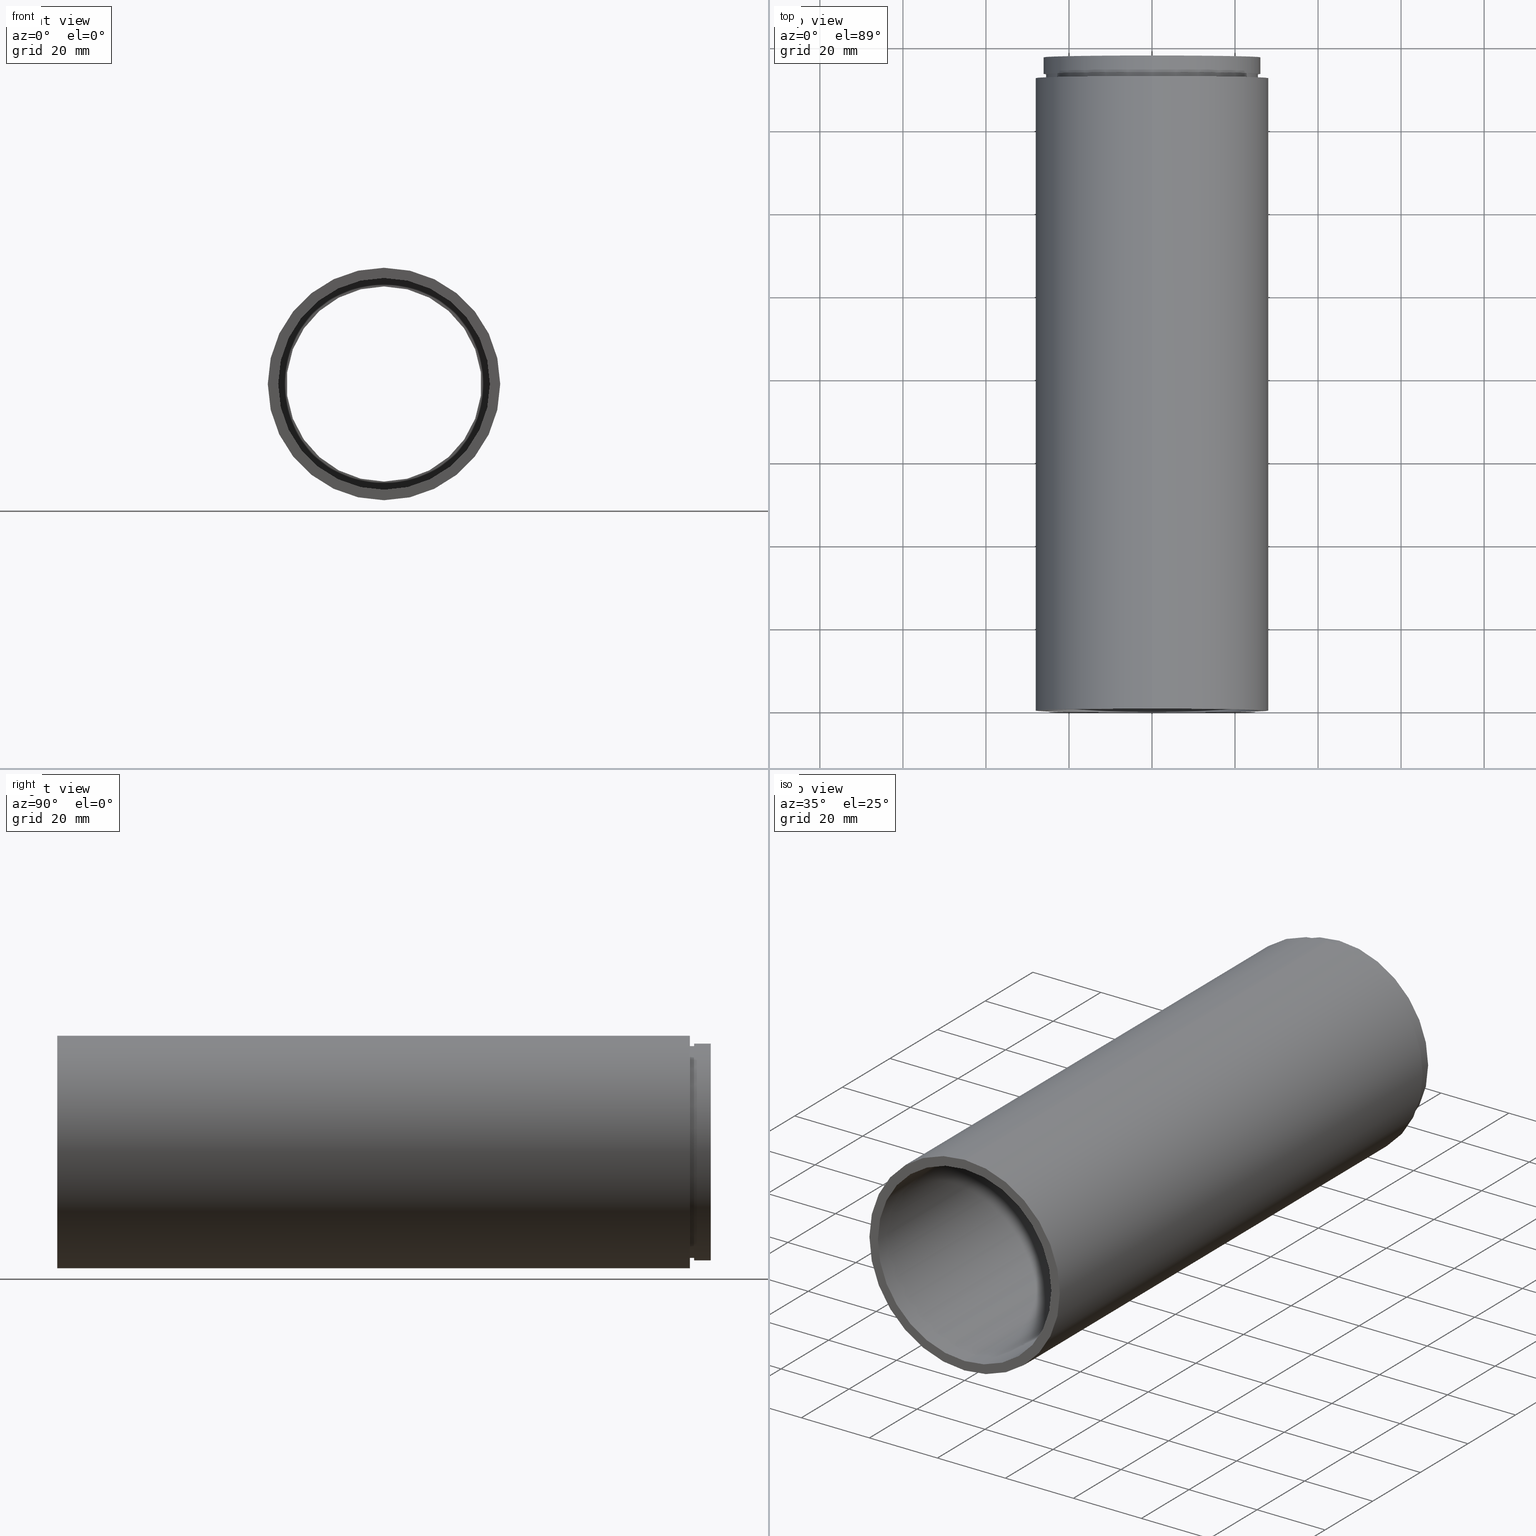
[diagram: canonical four-view strip — front | top / right | iso, engineering-drawing reading convention]
A machine part, canonical four-view strip (front | top / right | iso — engineering-drawing reading convention). The complete STEP part file that produces these views, byte-faithful:
ISO-10303-21;
HEADER;
FILE_DESCRIPTION (( 'STEP AP214' ),
    '1' );
FILE_NAME ('503099.STEP',
    '2019-09-12T01:43:04',
    ( '' ),
    ( '' ),
    'SwSTEP 2.0',
    'SolidWorks 2016',
    '' );
FILE_SCHEMA (( 'AUTOMOTIVE_DESIGN' ));
ENDSEC;

DATA;
#1 = EDGE_LOOP ( 'NONE', ( #52, #569, #319, #153 ) ) ;
#2 = DIRECTION ( 'NONE',  ( 0.0000000000000000000, 0.0000000000000000000, 1.000000000000000000 ) ) ;
#3 = DIRECTION ( 'NONE',  ( 0.0000000000000000000, 0.0000000000000000000, 1.000000000000000000 ) ) ;
#4 = CYLINDRICAL_SURFACE ( 'NONE', #422, 26.10000000000000100 ) ;
#5 =( GEOMETRIC_REPRESENTATION_CONTEXT ( 3 ) GLOBAL_UNCERTAINTY_ASSIGNED_CONTEXT ( ( #77 ) ) GLOBAL_UNIT_ASSIGNED_CONTEXT ( ( #597, #171, #22 ) ) REPRESENTATION_CONTEXT ( 'NONE', 'WORKASPACE' ) );
#6 = PRESENTATION_STYLE_ASSIGNMENT (( #623 ) ) ;
#7 = EDGE_CURVE ( 'NONE', #10, #278, #202, .T. ) ;
#8 = ORIENTED_EDGE ( 'NONE', *, *, #302, .F. ) ;
#9 = CIRCLE ( 'NONE', #236, 28.00000000000002100 ) ;
#10 = VERTEX_POINT ( 'NONE', #66 ) ;
#11 = VERTEX_POINT ( 'NONE', #267 ) ;
#12 = UNCERTAINTY_MEASURE_WITH_UNIT (LENGTH_MEASURE( 1.000000000000000100E-005 ), #544, 'distance_accuracy_value', 'NONE');
#13 = CARTESIAN_POINT ( 'NONE',  ( 0.0000000000000000000, -2.775557561562891400E-014, 25.50000000000001800 ) ) ;
#14 = CIRCLE ( 'NONE', #36, 25.50000000000000000 ) ;
#15 = DIRECTION ( 'NONE',  ( -0.0000000000000000000, 1.000000000000000000, -0.0000000000000000000 ) ) ;
#16 = ORIENTED_EDGE ( 'NONE', *, *, #507, .T. ) ;
#17 = DIRECTION ( 'NONE',  ( 0.0000000000000000000, 0.0000000000000000000, 1.000000000000000000 ) ) ;
#18 = SURFACE_SIDE_STYLE ('',( #92 ) ) ;
#19 = DIRECTION ( 'NONE',  ( 0.0000000000000000000, 0.0000000000000000000, 1.000000000000000000 ) ) ;
#20 = DIRECTION ( 'NONE',  ( -0.0000000000000000000, 1.000000000000000000, -0.0000000000000000000 ) ) ;
#21 = STYLED_ITEM ( 'NONE', ( #244 ), #201 ) ;
#22 =( NAMED_UNIT ( * ) SI_UNIT ( $, .STERADIAN. ) SOLID_ANGLE_UNIT ( ) );
#23 = SURFACE_STYLE_FILL_AREA ( #485 ) ;
#24 = VECTOR ( 'NONE', #309, 1000.000000000000000 ) ;
#25 = DIRECTION ( 'NONE',  ( -0.0000000000000000000, 1.000000000000000000, -0.0000000000000000000 ) ) ;
#26 = VERTEX_POINT ( 'NONE', #308 ) ;
#27 = STYLED_ITEM ( 'NONE', ( #251 ), #474 ) ;
#28 = ORIENTED_EDGE ( 'NONE', *, *, #275, .F. ) ;
#29 = CARTESIAN_POINT ( 'NONE',  ( 0.0000000000000000000, 150.3999999999999800, 25.50000000000001800 ) ) ;
#30 = CARTESIAN_POINT ( 'NONE',  ( 0.0000000000000000000, 152.3999999999999800, 28.00000000000002100 ) ) ;
#31 = DIRECTION ( 'NONE',  ( 0.0000000000000000000, 0.0000000000000000000, 1.000000000000000000 ) ) ;
#32 = CARTESIAN_POINT ( 'NONE',  ( 0.0000000000000000000, 161.3761669434274500, 26.10000000000000100 ) ) ;
#33 =( LENGTH_UNIT ( ) NAMED_UNIT ( * ) SI_UNIT ( .MILLI., .METRE. ) );
#34 = ORIENTED_EDGE ( 'NONE', *, *, #37, .T. ) ;
#35 = CARTESIAN_POINT ( 'NONE',  ( 0.0000000000000000000, 161.3761669434274500, 25.50000000000001800 ) ) ;
#36 = AXIS2_PLACEMENT_3D ( 'NONE', #232, #609, #31 ) ;
#37 = EDGE_CURVE ( 'NONE', #11, #26, #235, .T. ) ;
#38 =( NAMED_UNIT ( * ) SI_UNIT ( $, .STERADIAN. ) SOLID_ANGLE_UNIT ( ) );
#39 = CARTESIAN_POINT ( 'NONE',  ( 3.429011037612591600E-015, 152.3999999999999800, -28.00000000000002100 ) ) ;
#40 = CARTESIAN_POINT ( 'NONE',  ( 0.0000000000000000000, 150.3999999999999800, 26.10000000000000100 ) ) ;
#41 = FACE_OUTER_BOUND ( 'NONE', #614, .T. ) ;
#42 = PLANE ( 'NONE',  #563 ) ;
#43 = LINE ( 'NONE', #114, #257 ) ;
#44 = VERTEX_POINT ( 'NONE', #169 ) ;
#45 = DIRECTION ( 'NONE',  ( -0.0000000000000000000, 1.000000000000000000, -0.0000000000000000000 ) ) ;
#46 = EDGE_CURVE ( 'NONE', #157, #300, #389, .T. ) ;
#47 = DIRECTION ( 'NONE',  ( 0.0000000000000000000, 0.0000000000000000000, 1.000000000000000000 ) ) ;
#48 = ADVANCED_FACE ( 'NONE', ( #133 ), #576, .F. ) ;
#49 = DIRECTION ( 'NONE',  ( 0.0000000000000000000, -1.000000000000000000, 0.0000000000000000000 ) ) ;
#50 = AXIS2_PLACEMENT_3D ( 'NONE', #383, #90, #530 ) ;
#51 = EDGE_LOOP ( 'NONE', ( #368, #419 ) ) ;
#52 = ORIENTED_EDGE ( 'NONE', *, *, #395, .F. ) ;
#53 = COLOUR_RGB ( '',1.000000000000000000, 1.000000000000000000, 1.000000000000000000 ) ;
#54 = AXIS2_PLACEMENT_3D ( 'NONE', #172, #118, #17 ) ;
#55 = ORIENTED_EDGE ( 'NONE', *, *, #302, .T. ) ;
#56 = AXIS2_PLACEMENT_3D ( 'NONE', #403, #164, #301 ) ;
#57 =( NAMED_UNIT ( * ) SI_UNIT ( $, .STERADIAN. ) SOLID_ANGLE_UNIT ( ) );
#58 = FACE_OUTER_BOUND ( 'NONE', #272, .T. ) ;
#59 = ORIENTED_EDGE ( 'NONE', *, *, #63, .T. ) ;
#60 = SURFACE_STYLE_USAGE ( .BOTH. , #262 ) ;
#61 = DIRECTION ( 'NONE',  ( -0.0000000000000000000, 1.000000000000000000, -0.0000000000000000000 ) ) ;
#62 = DIRECTION ( 'NONE',  ( -0.0000000000000000000, 1.000000000000000000, -0.0000000000000000000 ) ) ;
#63 = EDGE_CURVE ( 'NONE', #334, #81, #527, .T. ) ;
#64 = DIRECTION ( 'NONE',  ( 0.0000000000000000000, 0.0000000000000000000, 1.000000000000000000 ) ) ;
#65 = VECTOR ( 'NONE', #312, 1000.000000000000000 ) ;
#66 = CARTESIAN_POINT ( 'NONE',  ( 0.0000000000000000000, -2.775557561562891400E-014, 28.00000000000002100 ) ) ;
#67 = DIRECTION ( 'NONE',  ( 0.0000000000000000000, 0.0000000000000000000, 1.000000000000000000 ) ) ;
#68 = VECTOR ( 'NONE', #412, 1000.000000000000000 ) ;
#69 = EDGE_LOOP ( 'NONE', ( #16, #194 ) ) ;
#70 = CARTESIAN_POINT ( 'NONE',  ( 0.0000000000000000000, -2.775557561562891400E-014, 0.0000000000000000000 ) ) ;
#71 = CARTESIAN_POINT ( 'NONE',  ( 0.0000000000000000000, 161.3761669434274500, 0.0000000000000000000 ) ) ;
#72 = DIRECTION ( 'NONE',  ( -0.0000000000000000000, 1.000000000000000000, -0.0000000000000000000 ) ) ;
#73 = SURFACE_SIDE_STYLE ('',( #270 ) ) ;
#74 = AXIS2_PLACEMENT_3D ( 'NONE', #141, #45, #579 ) ;
#75 = SHAPE_DEFINITION_REPRESENTATION ( #545, #372 ) ;
#76 = ORIENTED_EDGE ( 'NONE', *, *, #240, .F. ) ;
#77 = UNCERTAINTY_MEASURE_WITH_UNIT (LENGTH_MEASURE( 1.000000000000000100E-005 ), #597, 'distance_accuracy_value', 'NONE');
#78 = ORIENTED_EDGE ( 'NONE', *, *, #590, .F. ) ;
#79 = DIRECTION ( 'NONE',  ( -0.0000000000000000000, 1.000000000000000000, -0.0000000000000000000 ) ) ;
#80 = AXIS2_PLACEMENT_3D ( 'NONE', #558, #280, #185 ) ;
#81 = VERTEX_POINT ( 'NONE', #274 ) ;
#82 =( LENGTH_UNIT ( ) NAMED_UNIT ( * ) SI_UNIT ( .MILLI., .METRE. ) );
#83 = CARTESIAN_POINT ( 'NONE',  ( 0.0000000000000000000, 150.3999999999999800, 0.0000000000000000000 ) ) ;
#84 = FACE_OUTER_BOUND ( 'NONE', #69, .T. ) ;
#85 = PRODUCT_CONTEXT ( 'NONE', #425, 'mechanical' ) ;
#86 = FACE_OUTER_BOUND ( 'NONE', #470, .T. ) ;
#87 = VERTEX_POINT ( 'NONE', #502 ) ;
#88 = EDGE_CURVE ( 'NONE', #265, #81, #604, .T. ) ;
#89 = ADVANCED_FACE ( 'NONE', ( #407 ), #121, .T. ) ;
#90 = DIRECTION ( 'NONE',  ( -0.0000000000000000000, 1.000000000000000000, 0.0000000000000000000 ) ) ;
#91 = AXIS2_PLACEMENT_3D ( 'NONE', #227, #552, #19 ) ;
#92 = SURFACE_STYLE_FILL_AREA ( #223 ) ;
#93 = FILL_AREA_STYLE ('',( #532 ) ) ;
#94 = VERTEX_POINT ( 'NONE', #29 ) ;
#95 = ORIENTED_EDGE ( 'NONE', *, *, #165, .T. ) ;
#96 = PRODUCT ( '503099', '503099', '', ( #85 ) ) ;
#97 = ORIENTED_EDGE ( 'NONE', *, *, #116, .T. ) ;
#98 = ADVANCED_FACE ( 'NONE', ( #347, #567 ), #453, .F. ) ;
#99 = CARTESIAN_POINT ( 'NONE',  ( 23.50000000000000000, 157.3999999999999800, 0.0000000000000000000 ) ) ;
#100 =( GEOMETRIC_REPRESENTATION_CONTEXT ( 3 ) GLOBAL_UNCERTAINTY_ASSIGNED_CONTEXT ( ( #531 ) ) GLOBAL_UNIT_ASSIGNED_CONTEXT ( ( #138, #414, #469 ) ) REPRESENTATION_CONTEXT ( 'NONE', 'WORKASPACE' ) );
#101 = CYLINDRICAL_SURFACE ( 'NONE', #158, 25.50000000000000000 ) ;
#102 = EDGE_CURVE ( 'NONE', #10, #228, #43, .T. ) ;
#103 = FACE_OUTER_BOUND ( 'NONE', #246, .T. ) ;
#104 = ADVANCED_FACE ( 'NONE', ( #487 ), #538, .F. ) ;
#105 = PLANE ( 'NONE',  #553 ) ;
#106 = PRESENTATION_STYLE_ASSIGNMENT (( #596 ) ) ;
#107 = ORIENTED_EDGE ( 'NONE', *, *, #63, .F. ) ;
#108 = AXIS2_PLACEMENT_3D ( 'NONE', #148, #248, #2 ) ;
#109 = VERTEX_POINT ( 'NONE', #40 ) ;
#110 =( NAMED_UNIT ( * ) PLANE_ANGLE_UNIT ( ) SI_UNIT ( $, .RADIAN. ) );
#111 = COLOUR_RGB ( '',1.000000000000000000, 1.000000000000000000, 1.000000000000000000 ) ;
#112 = VECTOR ( 'NONE', #399, 1000.000000000000000 ) ;
#113 = ORIENTED_EDGE ( 'NONE', *, *, #146, .F. ) ;
#114 = CARTESIAN_POINT ( 'NONE',  ( 0.0000000000000000000, 161.3761669434274500, 28.00000000000002100 ) ) ;
#115 = CARTESIAN_POINT ( 'NONE',  ( 0.0000000000000000000, 161.3761669434274500, 26.10000000000000100 ) ) ;
#116 = EDGE_CURVE ( 'NONE', #170, #488, #506, .T. ) ;
#117 = DIRECTION ( 'NONE',  ( 0.0000000000000000000, 0.0000000000000000000, 1.000000000000000000 ) ) ;
#118 = DIRECTION ( 'NONE',  ( -0.0000000000000000000, 1.000000000000000000, -0.0000000000000000000 ) ) ;
#119 = DIRECTION ( 'NONE',  ( 0.0000000000000000000, -0.0000000000000000000, -1.000000000000000000 ) ) ;
#120 = MECHANICAL_DESIGN_GEOMETRIC_PRESENTATION_REPRESENTATION (  '', ( #27 ), #489 ) ;
#121 = CYLINDRICAL_SURFACE ( 'NONE', #429, 28.00000000000002100 ) ;
#122 = ORIENTED_EDGE ( 'NONE', *, *, #140, .F. ) ;
#123 =( NAMED_UNIT ( * ) PLANE_ANGLE_UNIT ( ) SI_UNIT ( $, .RADIAN. ) );
#124 = UNCERTAINTY_MEASURE_WITH_UNIT (LENGTH_MEASURE( 1.000000000000000100E-005 ), #82, 'distance_accuracy_value', 'NONE');
#125 = ORIENTED_EDGE ( 'NONE', *, *, #410, .T. ) ;
#126 = CARTESIAN_POINT ( 'NONE',  ( 0.0000000000000000000, -2.775557561562891400E-014, 0.0000000000000000000 ) ) ;
#127 = CARTESIAN_POINT ( 'NONE',  ( 0.0000000000000000000, 151.3999999999999800, 0.0000000000000000000 ) ) ;
#128 = APPLICATION_PROTOCOL_DEFINITION ( 'draft international standard', 'automotive_design', 1998, #425 ) ;
#129 = CARTESIAN_POINT ( 'NONE',  ( 3.122849337825753000E-015, -2.775557561562891400E-014, -25.50000000000001800 ) ) ;
#130 = CARTESIAN_POINT ( 'NONE',  ( 0.0000000000000000000, 153.3999999999999800, 25.50000000000000000 ) ) ;
#131 = CYLINDRICAL_SURFACE ( 'NONE', #423, 23.50000000000000000 ) ;
#132 = DIRECTION ( 'NONE',  ( 0.0000000000000000000, 0.0000000000000000000, 1.000000000000000000 ) ) ;
#133 = FACE_OUTER_BOUND ( 'NONE', #557, .T. ) ;
#134 = PRODUCT_RELATED_PRODUCT_CATEGORY ( 'part', '', ( #96 ) ) ;
#135 = ORIENTED_EDGE ( 'NONE', *, *, #173, .T. ) ;
#136 = AXIS2_PLACEMENT_3D ( 'NONE', #504, #457, #445 ) ;
#137 = DIRECTION ( 'NONE',  ( -0.0000000000000000000, 1.000000000000000000, -0.0000000000000000000 ) ) ;
#138 =( LENGTH_UNIT ( ) NAMED_UNIT ( * ) SI_UNIT ( .MILLI., .METRE. ) );
#139 = DIRECTION ( 'NONE',  ( 0.0000000000000000000, 0.0000000000000000000, 1.000000000000000000 ) ) ;
#140 = EDGE_CURVE ( 'NONE', #109, #170, #225, .T. ) ;
#141 = CARTESIAN_POINT ( 'NONE',  ( 0.0000000000000000000, 161.3761669434274500, 0.0000000000000000000 ) ) ;
#142 = PRESENTATION_STYLE_ASSIGNMENT (( #365 ) ) ;
#143 = FILL_AREA_STYLE_COLOUR ( '', #486 ) ;
#144 = ORIENTED_EDGE ( 'NONE', *, *, #275, .T. ) ;
#145 = ORIENTED_EDGE ( 'NONE', *, *, #155, .T. ) ;
#146 = EDGE_CURVE ( 'NONE', #157, #180, #264, .T. ) ;
#147 =( NAMED_UNIT ( * ) SI_UNIT ( $, .STERADIAN. ) SOLID_ANGLE_UNIT ( ) );
#148 = CARTESIAN_POINT ( 'NONE',  ( 0.0000000000000000000, 151.3999999999999800, 0.0000000000000000000 ) ) ;
#149 = AXIS2_PLACEMENT_3D ( 'NONE', #518, #379, #462 ) ;
#150 = CIRCLE ( 'NONE', #149, 26.10000000000000100 ) ;
#151 = FACE_OUTER_BOUND ( 'NONE', #162, .T. ) ;
#152 = FACE_BOUND ( 'NONE', #577, .T. ) ;
#153 = ORIENTED_EDGE ( 'NONE', *, *, #37, .F. ) ;
#154 = ORIENTED_EDGE ( 'NONE', *, *, #439, .F. ) ;
#155 = EDGE_CURVE ( 'NONE', #94, #180, #493, .T. ) ;
#156 = VECTOR ( 'NONE', #465, 1000.000000000000000 ) ;
#157 = VERTEX_POINT ( 'NONE', #129 ) ;
#158 = AXIS2_PLACEMENT_3D ( 'NONE', #523, #322, #328 ) ;
#159 = CARTESIAN_POINT ( 'NONE',  ( 0.0000000000000000000, 157.3999999999999800, 0.0000000000000000000 ) ) ;
#160 = LINE ( 'NONE', #615, #156 ) ;
#161 = CARTESIAN_POINT ( 'NONE',  ( 3.122849337825750200E-015, 152.3999999999999800, -25.50000000000000000 ) ) ;
#162 = EDGE_LOOP ( 'NONE', ( #495, #349, #494, #217 ) ) ;
#163 = ORIENTED_EDGE ( 'NONE', *, *, #287, .F. ) ;
#164 = DIRECTION ( 'NONE',  ( -0.0000000000000000000, 1.000000000000000000, -0.0000000000000000000 ) ) ;
#165 = EDGE_CURVE ( 'NONE', #265, #206, #593, .T. ) ;
#166 = CARTESIAN_POINT ( 'NONE',  ( 0.0000000000000000000, 161.3761669434274500, 0.0000000000000000000 ) ) ;
#167 = DIRECTION ( 'NONE',  ( -0.0000000000000000000, 1.000000000000000000, -0.0000000000000000000 ) ) ;
#168 = FACE_OUTER_BOUND ( 'NONE', #509, .T. ) ;
#169 = CARTESIAN_POINT ( 'NONE',  ( 2.877919977996280300E-015, 151.3999999999999800, -23.50000000000000000 ) ) ;
#170 = VERTEX_POINT ( 'NONE', #463 ) ;
#171 =( NAMED_UNIT ( * ) PLANE_ANGLE_UNIT ( ) SI_UNIT ( $, .RADIAN. ) );
#172 = CARTESIAN_POINT ( 'NONE',  ( 0.0000000000000000000, 157.3999999999999800, 0.0000000000000000000 ) ) ;
#173 = EDGE_CURVE ( 'NONE', #26, #226, #340, .T. ) ;
#174 = FILL_AREA_STYLE ('',( #321 ) ) ;
#175 = CIRCLE ( 'NONE', #91, 25.50000000000000000 ) ;
#176 = FILL_AREA_STYLE_COLOUR ( '', #415 ) ;
#177 = FACE_BOUND ( 'NONE', #605, .T. ) ;
#178 = ORIENTED_EDGE ( 'NONE', *, *, #102, .T. ) ;
#179 = DIRECTION ( 'NONE',  ( 0.0000000000000000000, 0.0000000000000000000, 1.000000000000000000 ) ) ;
#180 = VERTEX_POINT ( 'NONE', #239 ) ;
#181 = CARTESIAN_POINT ( 'NONE',  ( 0.0000000000000000000, 152.3999999999999800, 25.50000000000000000 ) ) ;
#182 = FILL_AREA_STYLE ('',( #176 ) ) ;
#183 =( NAMED_UNIT ( * ) PLANE_ANGLE_UNIT ( ) SI_UNIT ( $, .RADIAN. ) );
#184 = DIRECTION ( 'NONE',  ( -0.0000000000000000000, 1.000000000000000000, -0.0000000000000000000 ) ) ;
#185 = DIRECTION ( 'NONE',  ( 1.000000000000000000, 0.0000000000000000000, 0.0000000000000000000 ) ) ;
#186 = ORIENTED_EDGE ( 'NONE', *, *, #155, .F. ) ;
#187 = MECHANICAL_DESIGN_GEOMETRIC_PRESENTATION_REPRESENTATION (  '', ( #572 ), #601 ) ;
#188 = CARTESIAN_POINT ( 'NONE',  ( 28.00000000000002100, 152.3999999999999800, 0.0000000000000000000 ) ) ;
#189 = AXIS2_PLACEMENT_3D ( 'NONE', #99, #329, #396 ) ;
#190 = UNCERTAINTY_MEASURE_WITH_UNIT (LENGTH_MEASURE( 1.000000000000000100E-005 ), #243, 'distance_accuracy_value', 'NONE');
#191 = CYLINDRICAL_SURFACE ( 'NONE', #297, 26.10000000000000100 ) ;
#192 = CYLINDRICAL_SURFACE ( 'NONE', #490, 28.00000000000002100 ) ;
#193 =( NAMED_UNIT ( * ) SI_UNIT ( $, .STERADIAN. ) SOLID_ANGLE_UNIT ( ) );
#194 = ORIENTED_EDGE ( 'NONE', *, *, #475, .T. ) ;
#195 = VERTEX_POINT ( 'NONE', #181 ) ;
#196 = CARTESIAN_POINT ( 'NONE',  ( 0.0000000000000000000, 152.3999999999999800, 0.0000000000000000000 ) ) ;
#197 = PRESENTATION_LAYER_ASSIGNMENT (  '', '', ( #400 ) ) ;
#198 = AXIS2_PLACEMENT_3D ( 'NONE', #283, #277, #369 ) ;
#199 = CIRCLE ( 'NONE', #540, 25.50000000000000000 ) ;
#200 = CIRCLE ( 'NONE', #521, 28.00000000000002100 ) ;
#201 = ADVANCED_FACE ( 'NONE', ( #216 ), #131, .F. ) ;
#202 = CIRCLE ( 'NONE', #370, 28.00000000000002100 ) ;
#203 = ORIENTED_EDGE ( 'NONE', *, *, #382, .F. ) ;
#204 = EDGE_CURVE ( 'NONE', #300, #94, #436, .T. ) ;
#205 = DIRECTION ( 'NONE',  ( -0.0000000000000000000, 1.000000000000000000, 0.0000000000000000000 ) ) ;
#206 = VERTEX_POINT ( 'NONE', #281 ) ;
#207 = ORIENTED_EDGE ( 'NONE', *, *, #499, .T. ) ;
#208 = EDGE_LOOP ( 'NONE', ( #310, #432 ) ) ;
#209 = DIRECTION ( 'NONE',  ( -0.0000000000000000000, 1.000000000000000000, -0.0000000000000000000 ) ) ;
#210 = PRODUCT_DEFINITION ( 'δ֪', '', #250, #467 ) ;
#211 = CARTESIAN_POINT ( 'NONE',  ( 25.50000000000001800, -1.408179048343280000E-014, 0.0000000000000000000 ) ) ;
#212 = CARTESIAN_POINT ( 'NONE',  ( 3.196328145774592300E-015, 161.3761669434274500, -26.10000000000000100 ) ) ;
#213 = CIRCLE ( 'NONE', #520, 23.50000000000000000 ) ;
#214 = FACE_BOUND ( 'NONE', #208, .T. ) ;
#215 = FILL_AREA_STYLE ('',( #359 ) ) ;
#216 = FACE_OUTER_BOUND ( 'NONE', #320, .T. ) ;
#217 = ORIENTED_EDGE ( 'NONE', *, *, #358, .F. ) ;
#218 = FILL_AREA_STYLE ('',( #594 ) ) ;
#219 = DIRECTION ( 'NONE',  ( 0.0000000000000000000, 0.0000000000000000000, 1.000000000000000000 ) ) ;
#220 = EDGE_CURVE ( 'NONE', #550, #228, #9, .T. ) ;
#221 = CARTESIAN_POINT ( 'NONE',  ( 0.0000000000000000000, 151.3999999999999800, 0.0000000000000000000 ) ) ;
#222 = DIRECTION ( 'NONE',  ( -0.0000000000000000000, 1.000000000000000000, -0.0000000000000000000 ) ) ;
#223 = FILL_AREA_STYLE ('',( #599 ) ) ;
#224 = MECHANICAL_DESIGN_GEOMETRIC_PRESENTATION_REPRESENTATION (  '', ( #400 ), #562 ) ;
#225 = LINE ( 'NONE', #32, #376 ) ;
#226 = VERTEX_POINT ( 'NONE', #316 ) ;
#227 = CARTESIAN_POINT ( 'NONE',  ( 0.0000000000000000000, 152.3999999999999800, 0.0000000000000000000 ) ) ;
#228 = VERTEX_POINT ( 'NONE', #30 ) ;
#229 =( NAMED_UNIT ( * ) PLANE_ANGLE_UNIT ( ) SI_UNIT ( $, .RADIAN. ) );
#230 = DIRECTION ( 'NONE',  ( 0.0000000000000000000, 0.0000000000000000000, 1.000000000000000000 ) ) ;
#231 = CARTESIAN_POINT ( 'NONE',  ( 0.0000000000000000000, 161.3761669434274500, 0.0000000000000000000 ) ) ;
#232 = CARTESIAN_POINT ( 'NONE',  ( 0.0000000000000000000, 153.3999999999999800, 0.0000000000000000000 ) ) ;
#233 = AXIS2_PLACEMENT_3D ( 'NONE', #420, #472, #139 ) ;
#234 = LINE ( 'NONE', #330, #592 ) ;
#235 = LINE ( 'NONE', #606, #24 ) ;
#236 = AXIS2_PLACEMENT_3D ( 'NONE', #568, #513, #132 ) ;
#237 = DIRECTION ( 'NONE',  ( 0.0000000000000000000, 0.0000000000000000000, 1.000000000000000000 ) ) ;
#238 = ORIENTED_EDGE ( 'NONE', *, *, #507, .F. ) ;
#239 = CARTESIAN_POINT ( 'NONE',  ( 3.122849337825753000E-015, 150.3999999999999800, -25.50000000000001800 ) ) ;
#240 = EDGE_CURVE ( 'NONE', #44, #226, #160, .T. ) ;
#241 =( LENGTH_UNIT ( ) NAMED_UNIT ( * ) SI_UNIT ( .MILLI., .METRE. ) );
#242 = SURFACE_STYLE_FILL_AREA ( #215 ) ;
#243 =( LENGTH_UNIT ( ) NAMED_UNIT ( * ) SI_UNIT ( .MILLI., .METRE. ) );
#244 = PRESENTATION_STYLE_ASSIGNMENT (( #608 ) ) ;
#245 = ADVANCED_FACE ( 'NONE', ( #449 ), #192, .T. ) ;
#246 = EDGE_LOOP ( 'NONE', ( #95, #260, #78, #348 ) ) ;
#247 = EDGE_CURVE ( 'NONE', #228, #550, #200, .T. ) ;
#248 = DIRECTION ( 'NONE',  ( -0.0000000000000000000, 1.000000000000000000, -0.0000000000000000000 ) ) ;
#249 = ADVANCED_FACE ( 'NONE', ( #58 ), #524, .F. ) ;
#250 = PRODUCT_DEFINITION_FORMATION_WITH_SPECIFIED_SOURCE ( '�κ�', '', #96, .NOT_KNOWN. ) ;
#251 = PRESENTATION_STYLE_ASSIGNMENT (( #273 ) ) ;
#252 = ADVANCED_FACE ( 'NONE', ( #177, #353 ), #42, .F. ) ;
#253 = CYLINDRICAL_SURFACE ( 'NONE', #315, 26.10000000000000100 ) ;
#254 = COLOUR_RGB ( '',1.000000000000000000, 1.000000000000000000, 1.000000000000000000 ) ;
#255 = ORIENTED_EDGE ( 'NONE', *, *, #7, .T. ) ;
#256 = STYLED_ITEM ( 'NONE', ( #142 ), #104 ) ;
#257 = VECTOR ( 'NONE', #222, 1000.000000000000000 ) ;
#258 = EDGE_LOOP ( 'NONE', ( #442, #378 ) ) ;
#259 = AXIS2_PLACEMENT_3D ( 'NONE', #126, #72, #64 ) ;
#260 = ORIENTED_EDGE ( 'NONE', *, *, #311, .T. ) ;
#261 = UNCERTAINTY_MEASURE_WITH_UNIT (LENGTH_MEASURE( 1.000000000000000100E-005 ), #33, 'distance_accuracy_value', 'NONE');
#262 = SURFACE_SIDE_STYLE ('',( #339 ) ) ;
#263 = COLOUR_RGB ( '',1.000000000000000000, 1.000000000000000000, 1.000000000000000000 ) ;
#264 = LINE ( 'NONE', #471, #286 ) ;
#265 = VERTEX_POINT ( 'NONE', #427 ) ;
#266 = DIRECTION ( 'NONE',  ( 0.0000000000000000000, -1.000000000000000000, 0.0000000000000000000 ) ) ;
#267 = CARTESIAN_POINT ( 'NONE',  ( 0.0000000000000000000, 151.3999999999999800, 23.50000000000000000 ) ) ;
#268 = SURFACE_SIDE_STYLE ('',( #242 ) ) ;
#269 = EDGE_CURVE ( 'NONE', #488, #170, #566, .T. ) ;
#270 = SURFACE_STYLE_FILL_AREA ( #218 ) ;
#271 = VERTEX_POINT ( 'NONE', #533 ) ;
#272 = EDGE_LOOP ( 'NONE', ( #113, #452, #431, #145 ) ) ;
#273 = SURFACE_STYLE_USAGE ( .BOTH. , #18 ) ;
#274 = CARTESIAN_POINT ( 'NONE',  ( 0.0000000000000000000, 157.3999999999999800, 26.10000000000000100 ) ) ;
#275 = EDGE_CURVE ( 'NONE', #206, #265, #394, .T. ) ;
#276 = CARTESIAN_POINT ( 'NONE',  ( 0.0000000000000000000, 150.3999999999999800, 0.0000000000000000000 ) ) ;
#277 = DIRECTION ( 'NONE',  ( -0.0000000000000000000, 1.000000000000000000, -0.0000000000000000000 ) ) ;
#278 = VERTEX_POINT ( 'NONE', #333 ) ;
#279 = DIRECTION ( 'NONE',  ( -0.0000000000000000000, 1.000000000000000000, -0.0000000000000000000 ) ) ;
#280 = DIRECTION ( 'NONE',  ( 0.0000000000000000000, 0.0000000000000000000, 1.000000000000000000 ) ) ;
#281 = CARTESIAN_POINT ( 'NONE',  ( 3.196328145774592300E-015, 153.3999999999999800, -26.10000000000000100 ) ) ;
#282 = APPLICATION_PROTOCOL_DEFINITION ( 'draft international standard', 'automotive_design', 1998, #519 ) ;
#283 = CARTESIAN_POINT ( 'NONE',  ( 0.0000000000000000000, 153.3999999999999800, 0.0000000000000000000 ) ) ;
#284 = SURFACE_STYLE_FILL_AREA ( #93 ) ;
#285 = ADVANCED_FACE ( 'NONE', ( #103 ), #253, .T. ) ;
#286 = VECTOR ( 'NONE', #279, 1000.000000000000000 ) ;
#287 = EDGE_CURVE ( 'NONE', #278, #10, #375, .T. ) ;
#288 = DIRECTION ( 'NONE',  ( -0.0000000000000000000, 1.000000000000000000, -0.0000000000000000000 ) ) ;
#289 = EDGE_LOOP ( 'NONE', ( #536, #397 ) ) ;
#290 =( NAMED_UNIT ( * ) PLANE_ANGLE_UNIT ( ) SI_UNIT ( $, .RADIAN. ) );
#291 = PRESENTATION_LAYER_ASSIGNMENT (  '', '', ( #448 ) ) ;
#292 = CARTESIAN_POINT ( 'NONE',  ( 0.0000000000000000000, 153.3999999999999800, 0.0000000000000000000 ) ) ;
#293 = ADVANCED_FACE ( 'NONE', ( #168, #152 ), #473, .F. ) ;
#294 = SURFACE_STYLE_FILL_AREA ( #182 ) ;
#295 = ORIENTED_EDGE ( 'NONE', *, *, #475, .F. ) ;
#296 = ORIENTED_EDGE ( 'NONE', *, *, #287, .T. ) ;
#297 = AXIS2_PLACEMENT_3D ( 'NONE', #350, #209, #500 ) ;
#298 = ADVANCED_FACE ( 'NONE', ( #548, #41 ), #428, .F. ) ;
#299 = PRESENTATION_LAYER_ASSIGNMENT (  '', '', ( #256 ) ) ;
#300 = VERTEX_POINT ( 'NONE', #13 ) ;
#301 = DIRECTION ( 'NONE',  ( 0.0000000000000000000, 0.0000000000000000000, 1.000000000000000000 ) ) ;
#302 = EDGE_CURVE ( 'NONE', #278, #550, #234, .T. ) ;
#303 = CYLINDRICAL_SURFACE ( 'NONE', #512, 25.50000000000000000 ) ;
#304 = ORIENTED_EDGE ( 'NONE', *, *, #332, .F. ) ;
#305 = ORIENTED_EDGE ( 'NONE', *, *, #434, .T. ) ;
#306 =( GEOMETRIC_REPRESENTATION_CONTEXT ( 3 ) GLOBAL_UNCERTAINTY_ASSIGNED_CONTEXT ( ( #571 ) ) GLOBAL_UNIT_ASSIGNED_CONTEXT ( ( #357, #123, #450 ) ) REPRESENTATION_CONTEXT ( 'NONE', 'WORKASPACE' ) );
#307 = CARTESIAN_POINT ( 'NONE',  ( 0.0000000000000000000, 161.3761669434274500, 25.50000000000000000 ) ) ;
#308 = CARTESIAN_POINT ( 'NONE',  ( 0.0000000000000000000, 157.3999999999999800, 23.50000000000000000 ) ) ;
#309 = DIRECTION ( 'NONE',  ( -0.0000000000000000000, 1.000000000000000000, -0.0000000000000000000 ) ) ;
#310 = ORIENTED_EDGE ( 'NONE', *, *, #374, .T. ) ;
#311 = EDGE_CURVE ( 'NONE', #206, #334, #466, .T. ) ;
#312 = DIRECTION ( 'NONE',  ( -0.0000000000000000000, 1.000000000000000000, -0.0000000000000000000 ) ) ;
#313 = DIRECTION ( 'NONE',  ( 0.0000000000000000000, 0.0000000000000000000, 1.000000000000000000 ) ) ;
#314 =( NAMED_UNIT ( * ) SI_UNIT ( $, .STERADIAN. ) SOLID_ANGLE_UNIT ( ) );
#315 = AXIS2_PLACEMENT_3D ( 'NONE', #483, #288, #47 ) ;
#316 = CARTESIAN_POINT ( 'NONE',  ( 2.877919977996280300E-015, 157.3999999999999800, -23.50000000000000000 ) ) ;
#317 = CYLINDRICAL_SURFACE ( 'NONE', #455, 25.50000000000001800 ) ;
#318 = FACE_OUTER_BOUND ( 'NONE', #401, .T. ) ;
#319 = ORIENTED_EDGE ( 'NONE', *, *, #361, .T. ) ;
#320 = EDGE_LOOP ( 'NONE', ( #76, #304, #34, #135 ) ) ;
#321 = FILL_AREA_STYLE_COLOUR ( '', #327 ) ;
#322 = DIRECTION ( 'NONE',  ( -0.0000000000000000000, 1.000000000000000000, -0.0000000000000000000 ) ) ;
#323 = AXIS2_PLACEMENT_3D ( 'NONE', #405, #266, #119 ) ;
#324 = FACE_OUTER_BOUND ( 'NONE', #578, .T. ) ;
#325 = AXIS2_PLACEMENT_3D ( 'NONE', #127, #460, #610 ) ;
#326 = DIRECTION ( 'NONE',  ( 0.0000000000000000000, 0.0000000000000000000, 1.000000000000000000 ) ) ;
#327 = COLOUR_RGB ( '',1.000000000000000000, 1.000000000000000000, 1.000000000000000000 ) ;
#328 = DIRECTION ( 'NONE',  ( 0.0000000000000000000, 0.0000000000000000000, 1.000000000000000000 ) ) ;
#329 = DIRECTION ( 'NONE',  ( 0.0000000000000000000, -1.000000000000000000, 0.0000000000000000000 ) ) ;
#330 = CARTESIAN_POINT ( 'NONE',  ( 3.429011037612591600E-015, 161.3761669434274500, -28.00000000000002100 ) ) ;
#331 = DIRECTION ( 'NONE',  ( -0.0000000000000000000, 1.000000000000000000, -0.0000000000000000000 ) ) ;
#332 = EDGE_CURVE ( 'NONE', #11, #44, #612, .T. ) ;
#333 = CARTESIAN_POINT ( 'NONE',  ( 3.429011037612591600E-015, -2.775557561562891400E-014, -28.00000000000002100 ) ) ;
#334 = VERTEX_POINT ( 'NONE', #541 ) ;
#335 = VERTEX_POINT ( 'NONE', #161 ) ;
#336 = DIRECTION ( 'NONE',  ( 0.0000000000000000000, -0.0000000000000000000, -1.000000000000000000 ) ) ;
#337 = ADVANCED_FACE ( 'NONE', ( #86, #214 ), #105, .F. ) ;
#338 = AXIS2_PLACEMENT_3D ( 'NONE', #83, #424, #613 ) ;
#339 = SURFACE_STYLE_FILL_AREA ( #584 ) ;
#340 = CIRCLE ( 'NONE', #392, 23.50000000000000000 ) ;
#341 = EDGE_LOOP ( 'NONE', ( #255, #55, #501, #624 ) ) ;
#342 = ADVANCED_FACE ( 'NONE', ( #318 ), #191, .T. ) ;
#343 = EDGE_CURVE ( 'NONE', #180, #94, #515, .T. ) ;
#344 = UNCERTAINTY_MEASURE_WITH_UNIT (LENGTH_MEASURE( 1.000000000000000100E-005 ), #241, 'distance_accuracy_value', 'NONE');
#345 = VECTOR ( 'NONE', #61, 1000.000000000000000 ) ;
#346 = AXIS2_PLACEMENT_3D ( 'NONE', #276, #611, #564 ) ;
#347 = FACE_OUTER_BOUND ( 'NONE', #51, .T. ) ;
#348 = ORIENTED_EDGE ( 'NONE', *, *, #88, .F. ) ;
#349 = ORIENTED_EDGE ( 'NONE', *, *, #456, .T. ) ;
#350 = CARTESIAN_POINT ( 'NONE',  ( 0.0000000000000000000, 161.3761669434274500, 0.0000000000000000000 ) ) ;
#351 = FILL_AREA_STYLE_COLOUR ( '', #53 ) ;
#352 = FACE_OUTER_BOUND ( 'NONE', #534, .T. ) ;
#353 = FACE_OUTER_BOUND ( 'NONE', #443, .T. ) ;
#354 = CARTESIAN_POINT ( 'NONE',  ( 0.0000000000000000000, 152.3999999999999800, 0.0000000000000000000 ) ) ;
#355 = ORIENTED_EDGE ( 'NONE', *, *, #343, .T. ) ;
#356 = STYLED_ITEM ( 'NONE', ( #498 ), #372 ) ;
#357 =( LENGTH_UNIT ( ) NAMED_UNIT ( * ) SI_UNIT ( .MILLI., .METRE. ) );
#358 = EDGE_CURVE ( 'NONE', #195, #582, #447, .T. ) ;
#359 = FILL_AREA_STYLE_COLOUR ( '', #111 ) ;
#360 = DIRECTION ( 'NONE',  ( 0.0000000000000000000, 0.0000000000000000000, 1.000000000000000000 ) ) ;
#361 = EDGE_CURVE ( 'NONE', #226, #26, #213, .T. ) ;
#362 = DIRECTION ( 'NONE',  ( -0.0000000000000000000, 1.000000000000000000, -0.0000000000000000000 ) ) ;
#363 = FACE_BOUND ( 'NONE', #384, .T. ) ;
#364 = SURFACE_STYLE_FILL_AREA ( #174 ) ;
#365 = SURFACE_STYLE_USAGE ( .BOTH. , #73 ) ;
#366 = ORIENTED_EDGE ( 'NONE', *, *, #269, .T. ) ;
#367 = PLANE ( 'NONE',  #323 ) ;
#368 = ORIENTED_EDGE ( 'NONE', *, *, #116, .F. ) ;
#369 = DIRECTION ( 'NONE',  ( 0.0000000000000000000, 0.0000000000000000000, 1.000000000000000000 ) ) ;
#370 = AXIS2_PLACEMENT_3D ( 'NONE', #551, #546, #409 ) ;
#371 = CARTESIAN_POINT ( 'NONE',  ( 0.0000000000000000000, 161.3761669434274500, 0.0000000000000000000 ) ) ;
#372 = ADVANCED_BREP_SHAPE_REPRESENTATION ( '503099', ( #459, #80 ), #100 ) ;
#373 = DIRECTION ( 'NONE',  ( -0.0000000000000000000, 1.000000000000000000, -0.0000000000000000000 ) ) ;
#374 = EDGE_CURVE ( 'NONE', #300, #157, #621, .T. ) ;
#375 = CIRCLE ( 'NONE', #589, 28.00000000000002100 ) ;
#376 = VECTOR ( 'NONE', #373, 1000.000000000000000 ) ;
#377 = DIRECTION ( 'NONE',  ( 0.0000000000000000000, 0.0000000000000000000, 1.000000000000000000 ) ) ;
#378 = ORIENTED_EDGE ( 'NONE', *, *, #361, .F. ) ;
#379 = DIRECTION ( 'NONE',  ( -0.0000000000000000000, 1.000000000000000000, -0.0000000000000000000 ) ) ;
#380 =( NAMED_UNIT ( * ) PLANE_ANGLE_UNIT ( ) SI_UNIT ( $, .RADIAN. ) );
#381 = CIRCLE ( 'NONE', #346, 26.10000000000000100 ) ;
#382 = EDGE_CURVE ( 'NONE', #195, #335, #175, .T. ) ;
#383 = CARTESIAN_POINT ( 'NONE',  ( 25.50000000000000000, 153.3999999999999800, 0.0000000000000000000 ) ) ;
#384 = EDGE_LOOP ( 'NONE', ( #186, #559 ) ) ;
#385 = EDGE_LOOP ( 'NONE', ( #8, #296, #178, #461 ) ) ;
#386 = DIRECTION ( 'NONE',  ( 0.0000000000000000000, 0.0000000000000000000, 1.000000000000000000 ) ) ;
#387 =( GEOMETRIC_REPRESENTATION_CONTEXT ( 3 ) GLOBAL_UNCERTAINTY_ASSIGNED_CONTEXT ( ( #190 ) ) GLOBAL_UNIT_ASSIGNED_CONTEXT ( ( #243, #290, #147 ) ) REPRESENTATION_CONTEXT ( 'NONE', 'WORKASPACE' ) );
#388 = SURFACE_SIDE_STYLE ('',( #284 ) ) ;
#389 = CIRCLE ( 'NONE', #398, 25.50000000000001800 ) ;
#390 = ORIENTED_EDGE ( 'NONE', *, *, #146, .T. ) ;
#391 =( GEOMETRIC_REPRESENTATION_CONTEXT ( 3 ) GLOBAL_UNCERTAINTY_ASSIGNED_CONTEXT ( ( #261 ) ) GLOBAL_UNIT_ASSIGNED_CONTEXT ( ( #33, #183, #514 ) ) REPRESENTATION_CONTEXT ( 'NONE', 'WORKASPACE' ) );
#392 = AXIS2_PLACEMENT_3D ( 'NONE', #421, #184, #179 ) ;
#393 = ADVANCED_FACE ( 'NONE', ( #363, #84 ), #367, .F. ) ;
#394 = CIRCLE ( 'NONE', #491, 26.10000000000000100 ) ;
#395 = EDGE_CURVE ( 'NONE', #44, #11, #580, .T. ) ;
#396 = DIRECTION ( 'NONE',  ( 0.0000000000000000000, -0.0000000000000000000, -1.000000000000000000 ) ) ;
#397 = ORIENTED_EDGE ( 'NONE', *, *, #395, .T. ) ;
#398 = AXIS2_PLACEMENT_3D ( 'NONE', #70, #25, #404 ) ;
#399 = DIRECTION ( 'NONE',  ( -0.0000000000000000000, 1.000000000000000000, -0.0000000000000000000 ) ) ;
#400 = STYLED_ITEM ( 'NONE', ( #581 ), #342 ) ;
#401 = EDGE_LOOP ( 'NONE', ( #408, #144, #508, #107 ) ) ;
#402 = AXIS2_PLACEMENT_3D ( 'NONE', #554, #600, #237 ) ;
#403 = CARTESIAN_POINT ( 'NONE',  ( 0.0000000000000000000, 150.3999999999999800, 0.0000000000000000000 ) ) ;
#404 = DIRECTION ( 'NONE',  ( 0.0000000000000000000, 0.0000000000000000000, 1.000000000000000000 ) ) ;
#405 = CARTESIAN_POINT ( 'NONE',  ( 25.50000000000001800, 150.3999999999999800, 0.0000000000000000000 ) ) ;
#406 = PRESENTATION_STYLE_ASSIGNMENT (( #476 ) ) ;
#407 = FACE_OUTER_BOUND ( 'NONE', #385, .T. ) ;
#408 = ORIENTED_EDGE ( 'NONE', *, *, #311, .F. ) ;
#409 = DIRECTION ( 'NONE',  ( 0.0000000000000000000, 0.0000000000000000000, 1.000000000000000000 ) ) ;
#410 = EDGE_CURVE ( 'NONE', #335, #195, #492, .T. ) ;
#411 = CARTESIAN_POINT ( 'NONE',  ( 3.196328145774592300E-015, 161.3761669434274500, -26.10000000000000100 ) ) ;
#412 = DIRECTION ( 'NONE',  ( -0.0000000000000000000, 1.000000000000000000, -0.0000000000000000000 ) ) ;
#413 = AXIS2_PLACEMENT_3D ( 'NONE', #221, #446, #117 ) ;
#414 =( NAMED_UNIT ( * ) PLANE_ANGLE_UNIT ( ) SI_UNIT ( $, .RADIAN. ) );
#415 = COLOUR_RGB ( '',1.000000000000000000, 1.000000000000000000, 1.000000000000000000 ) ;
#416 = CIRCLE ( 'NONE', #233, 26.10000000000000100 ) ;
#417 = ORIENTED_EDGE ( 'NONE', *, *, #410, .F. ) ;
#418 = SURFACE_STYLE_USAGE ( .BOTH. , #616 ) ;
#419 = ORIENTED_EDGE ( 'NONE', *, *, #269, .F. ) ;
#420 = CARTESIAN_POINT ( 'NONE',  ( 0.0000000000000000000, 150.3999999999999800, 0.0000000000000000000 ) ) ;
#421 = CARTESIAN_POINT ( 'NONE',  ( 0.0000000000000000000, 157.3999999999999800, 0.0000000000000000000 ) ) ;
#422 = AXIS2_PLACEMENT_3D ( 'NONE', #166, #167, #67 ) ;
#423 = AXIS2_PLACEMENT_3D ( 'NONE', #517, #560, #377 ) ;
#424 = DIRECTION ( 'NONE',  ( -0.0000000000000000000, 1.000000000000000000, -0.0000000000000000000 ) ) ;
#425 = APPLICATION_CONTEXT ( 'automotive_design' ) ;
#426 = EDGE_LOOP ( 'NONE', ( #529, #125, #438, #154 ) ) ;
#427 = CARTESIAN_POINT ( 'NONE',  ( 0.0000000000000000000, 153.3999999999999800, 26.10000000000000100 ) ) ;
#428 = PLANE ( 'NONE',  #189 ) ;
#429 = AXIS2_PLACEMENT_3D ( 'NONE', #598, #62, #313 ) ;
#430 = ADVANCED_FACE ( 'NONE', ( #324 ), #4, .F. ) ;
#431 = ORIENTED_EDGE ( 'NONE', *, *, #204, .T. ) ;
#432 = ORIENTED_EDGE ( 'NONE', *, *, #46, .T. ) ;
#433 = PRESENTATION_LAYER_ASSIGNMENT (  '', '', ( #526 ) ) ;
#434 = EDGE_CURVE ( 'NONE', #271, #488, #435, .T. ) ;
#435 = LINE ( 'NONE', #411, #574 ) ;
#436 = LINE ( 'NONE', #35, #516 ) ;
#437 = ORIENTED_EDGE ( 'NONE', *, *, #165, .F. ) ;
#438 = ORIENTED_EDGE ( 'NONE', *, *, #358, .T. ) ;
#439 = EDGE_CURVE ( 'NONE', #87, #582, #199, .T. ) ;
#440 = DIRECTION ( 'NONE',  ( 0.0000000000000000000, 0.0000000000000000000, 1.000000000000000000 ) ) ;
#441 = AXIS2_PLACEMENT_3D ( 'NONE', #444, #15, #440 ) ;
#442 = ORIENTED_EDGE ( 'NONE', *, *, #173, .F. ) ;
#443 = EDGE_LOOP ( 'NONE', ( #543, #549 ) ) ;
#444 = CARTESIAN_POINT ( 'NONE',  ( 0.0000000000000000000, 151.3999999999999800, 0.0000000000000000000 ) ) ;
#445 = DIRECTION ( 'NONE',  ( 0.0000000000000000000, 0.0000000000000000000, 1.000000000000000000 ) ) ;
#446 = DIRECTION ( 'NONE',  ( -0.0000000000000000000, 1.000000000000000000, -0.0000000000000000000 ) ) ;
#447 = LINE ( 'NONE', #307, #345 ) ;
#448 = STYLED_ITEM ( 'NONE', ( #106 ), #459 ) ;
#449 = FACE_OUTER_BOUND ( 'NONE', #341, .T. ) ;
#450 =( NAMED_UNIT ( * ) SI_UNIT ( $, .STERADIAN. ) SOLID_ANGLE_UNIT ( ) );
#451 = MECHANICAL_DESIGN_GEOMETRIC_PRESENTATION_REPRESENTATION (  '', ( #21 ), #539 ) ;
#452 = ORIENTED_EDGE ( 'NONE', *, *, #374, .F. ) ;
#453 = PLANE ( 'NONE',  #136 ) ;
#454 = DIRECTION ( 'NONE',  ( -0.0000000000000000000, 1.000000000000000000, -0.0000000000000000000 ) ) ;
#455 = AXIS2_PLACEMENT_3D ( 'NONE', #71, #458, #230 ) ;
#456 = EDGE_CURVE ( 'NONE', #335, #87, #602, .T. ) ;
#457 = DIRECTION ( 'NONE',  ( -0.0000000000000000000, 1.000000000000000000, 0.0000000000000000000 ) ) ;
#458 = DIRECTION ( 'NONE',  ( -0.0000000000000000000, 1.000000000000000000, -0.0000000000000000000 ) ) ;
#459 = MANIFOLD_SOLID_BREP ( '��ת1', #595 ) ;
#460 = DIRECTION ( 'NONE',  ( -0.0000000000000000000, 1.000000000000000000, -0.0000000000000000000 ) ) ;
#461 = ORIENTED_EDGE ( 'NONE', *, *, #220, .F. ) ;
#462 = DIRECTION ( 'NONE',  ( 0.0000000000000000000, 0.0000000000000000000, 1.000000000000000000 ) ) ;
#463 = CARTESIAN_POINT ( 'NONE',  ( 0.0000000000000000000, 151.3999999999999800, 26.10000000000000100 ) ) ;
#464 = MECHANICAL_DESIGN_GEOMETRIC_PRESENTATION_REPRESENTATION (  '', ( #448 ), #5 ) ;
#465 = DIRECTION ( 'NONE',  ( -0.0000000000000000000, 1.000000000000000000, -0.0000000000000000000 ) ) ;
#466 = LINE ( 'NONE', #212, #112 ) ;
#467 = PRODUCT_DEFINITION_CONTEXT ( 'detailed design', #519, 'design' ) ;
#468 = DIRECTION ( 'NONE',  ( -0.0000000000000000000, 1.000000000000000000, -0.0000000000000000000 ) ) ;
#469 =( NAMED_UNIT ( * ) SI_UNIT ( $, .STERADIAN. ) SOLID_ANGLE_UNIT ( ) );
#470 = EDGE_LOOP ( 'NONE', ( #481, #163 ) ) ;
#471 = CARTESIAN_POINT ( 'NONE',  ( 3.122849337825753000E-015, 161.3761669434274500, -25.50000000000001800 ) ) ;
#472 = DIRECTION ( 'NONE',  ( -0.0000000000000000000, 1.000000000000000000, -0.0000000000000000000 ) ) ;
#473 = PLANE ( 'NONE',  #50 ) ;
#474 = ADVANCED_FACE ( 'NONE', ( #352 ), #317, .F. ) ;
#475 = EDGE_CURVE ( 'NONE', #271, #109, #416, .T. ) ;
#476 = SURFACE_STYLE_USAGE ( .BOTH. , #573 ) ;
#477 = ADVANCED_FACE ( 'NONE', ( #542 ), #101, .T. ) ;
#478 = ORIENTED_EDGE ( 'NONE', *, *, #140, .T. ) ;
#479 = ORIENTED_EDGE ( 'NONE', *, *, #46, .F. ) ;
#480 = PRESENTATION_LAYER_ASSIGNMENT (  '', '', ( #27 ) ) ;
#481 = ORIENTED_EDGE ( 'NONE', *, *, #7, .F. ) ;
#482 = UNCERTAINTY_MEASURE_WITH_UNIT (LENGTH_MEASURE( 1.000000000000000100E-005 ), #555, 'distance_accuracy_value', 'NONE');
#483 = CARTESIAN_POINT ( 'NONE',  ( 0.0000000000000000000, 161.3761669434274500, 0.0000000000000000000 ) ) ;
#484 = ADVANCED_FACE ( 'NONE', ( #151 ), #303, .T. ) ;
#485 = FILL_AREA_STYLE ('',( #143 ) ) ;
#486 = COLOUR_RGB ( '',1.000000000000000000, 1.000000000000000000, 1.000000000000000000 ) ;
#487 = FACE_OUTER_BOUND ( 'NONE', #1, .T. ) ;
#488 = VERTEX_POINT ( 'NONE', #565 ) ;
#489 =( GEOMETRIC_REPRESENTATION_CONTEXT ( 3 ) GLOBAL_UNCERTAINTY_ASSIGNED_CONTEXT ( ( #482 ) ) GLOBAL_UNIT_ASSIGNED_CONTEXT ( ( #555, #603, #314 ) ) REPRESENTATION_CONTEXT ( 'NONE', 'WORKASPACE' ) );
#490 = AXIS2_PLACEMENT_3D ( 'NONE', #231, #468, #326 ) ;
#491 = AXIS2_PLACEMENT_3D ( 'NONE', #292, #618, #386 ) ;
#492 = CIRCLE ( 'NONE', #620, 25.50000000000000000 ) ;
#493 = CIRCLE ( 'NONE', #338, 25.50000000000001800 ) ;
#494 = ORIENTED_EDGE ( 'NONE', *, *, #499, .F. ) ;
#495 = ORIENTED_EDGE ( 'NONE', *, *, #382, .T. ) ;
#496 = DIRECTION ( 'NONE',  ( -0.0000000000000000000, 1.000000000000000000, -0.0000000000000000000 ) ) ;
#497 = DIRECTION ( 'NONE',  ( -0.0000000000000000000, 1.000000000000000000, -0.0000000000000000000 ) ) ;
#498 = PRESENTATION_STYLE_ASSIGNMENT (( #418 ) ) ;
#499 = EDGE_CURVE ( 'NONE', #582, #87, #14, .T. ) ;
#500 = DIRECTION ( 'NONE',  ( 0.0000000000000000000, 0.0000000000000000000, 1.000000000000000000 ) ) ;
#501 = ORIENTED_EDGE ( 'NONE', *, *, #247, .F. ) ;
#502 = CARTESIAN_POINT ( 'NONE',  ( 3.122849337825750200E-015, 153.3999999999999800, -25.50000000000000000 ) ) ;
#503 = CARTESIAN_POINT ( 'NONE',  ( 3.122849337825750200E-015, 161.3761669434274500, -25.50000000000000000 ) ) ;
#504 = CARTESIAN_POINT ( 'NONE',  ( 26.10000000000000100, 151.3999999999999800, 0.0000000000000000000 ) ) ;
#505 = CARTESIAN_POINT ( 'NONE',  ( 0.0000000000000000000, 153.3999999999999800, 0.0000000000000000000 ) ) ;
#506 = CIRCLE ( 'NONE', #325, 26.10000000000000100 ) ;
#507 = EDGE_CURVE ( 'NONE', #109, #271, #381, .T. ) ;
#508 = ORIENTED_EDGE ( 'NONE', *, *, #88, .T. ) ;
#509 = EDGE_LOOP ( 'NONE', ( #437, #28 ) ) ;
#510 = CARTESIAN_POINT ( 'NONE',  ( 0.0000000000000000000, 161.3761669434274500, 0.0000000000000000000 ) ) ;
#511 = DIRECTION ( 'NONE',  ( 0.0000000000000000000, 0.0000000000000000000, 1.000000000000000000 ) ) ;
#512 = AXIS2_PLACEMENT_3D ( 'NONE', #371, #79, #561 ) ;
#513 = DIRECTION ( 'NONE',  ( -0.0000000000000000000, 1.000000000000000000, -0.0000000000000000000 ) ) ;
#514 =( NAMED_UNIT ( * ) SI_UNIT ( $, .STERADIAN. ) SOLID_ANGLE_UNIT ( ) );
#515 = CIRCLE ( 'NONE', #56, 25.50000000000001800 ) ;
#516 = VECTOR ( 'NONE', #137, 1000.000000000000000 ) ;
#517 = CARTESIAN_POINT ( 'NONE',  ( 0.0000000000000000000, 161.3761669434274500, 0.0000000000000000000 ) ) ;
#518 = CARTESIAN_POINT ( 'NONE',  ( 0.0000000000000000000, 157.3999999999999800, 0.0000000000000000000 ) ) ;
#519 = APPLICATION_CONTEXT ( 'automotive_design' ) ;
#520 = AXIS2_PLACEMENT_3D ( 'NONE', #159, #496, #585 ) ;
#521 = AXIS2_PLACEMENT_3D ( 'NONE', #196, #331, #3 ) ;
#522 = SURFACE_SIDE_STYLE ('',( #364 ) ) ;
#523 = CARTESIAN_POINT ( 'NONE',  ( 0.0000000000000000000, 161.3761669434274500, 0.0000000000000000000 ) ) ;
#524 = CYLINDRICAL_SURFACE ( 'NONE', #74, 25.50000000000001800 ) ;
#525 = CARTESIAN_POINT ( 'NONE',  ( 0.0000000000000000000, -2.775557561562891400E-014, 0.0000000000000000000 ) ) ;
#526 = STYLED_ITEM ( 'NONE', ( #6 ), #285 ) ;
#527 = CIRCLE ( 'NONE', #54, 26.10000000000000100 ) ;
#528 = ORIENTED_EDGE ( 'NONE', *, *, #434, .F. ) ;
#529 = ORIENTED_EDGE ( 'NONE', *, *, #456, .F. ) ;
#530 = DIRECTION ( 'NONE',  ( 0.0000000000000000000, 0.0000000000000000000, 1.000000000000000000 ) ) ;
#531 = UNCERTAINTY_MEASURE_WITH_UNIT (LENGTH_MEASURE( 1.000000000000000100E-005 ), #138, 'distance_accuracy_value', 'NONE');
#532 = FILL_AREA_STYLE_COLOUR ( '', #263 ) ;
#533 = CARTESIAN_POINT ( 'NONE',  ( 3.196328145774592300E-015, 150.3999999999999800, -26.10000000000000100 ) ) ;
#534 = EDGE_LOOP ( 'NONE', ( #479, #390, #355, #586 ) ) ;
#535 = MECHANICAL_DESIGN_GEOMETRIC_PRESENTATION_REPRESENTATION (  '', ( #526 ), #387 ) ;
#536 = ORIENTED_EDGE ( 'NONE', *, *, #332, .T. ) ;
#537 = PRESENTATION_LAYER_ASSIGNMENT (  '', '', ( #21 ) ) ;
#538 = CYLINDRICAL_SURFACE ( 'NONE', #402, 23.50000000000000000 ) ;
#539 =( GEOMETRIC_REPRESENTATION_CONTEXT ( 3 ) GLOBAL_UNCERTAINTY_ASSIGNED_CONTEXT ( ( #124 ) ) GLOBAL_UNIT_ASSIGNED_CONTEXT ( ( #82, #229, #38 ) ) REPRESENTATION_CONTEXT ( 'NONE', 'WORKASPACE' ) );
#540 = AXIS2_PLACEMENT_3D ( 'NONE', #505, #454, #219 ) ;
#541 = CARTESIAN_POINT ( 'NONE',  ( 3.196328145774592300E-015, 157.3999999999999800, -26.10000000000000100 ) ) ;
#542 = FACE_OUTER_BOUND ( 'NONE', #426, .T. ) ;
#543 = ORIENTED_EDGE ( 'NONE', *, *, #247, .T. ) ;
#544 =( LENGTH_UNIT ( ) NAMED_UNIT ( * ) SI_UNIT ( .MILLI., .METRE. ) );
#545 = PRODUCT_DEFINITION_SHAPE ( 'NONE', 'NONE',  #210 ) ;
#546 = DIRECTION ( 'NONE',  ( -0.0000000000000000000, 1.000000000000000000, -0.0000000000000000000 ) ) ;
#547 = PRESENTATION_LAYER_ASSIGNMENT (  '', '', ( #572 ) ) ;
#548 = FACE_BOUND ( 'NONE', #258, .T. ) ;
#549 = ORIENTED_EDGE ( 'NONE', *, *, #220, .T. ) ;
#550 = VERTEX_POINT ( 'NONE', #39 ) ;
#551 = CARTESIAN_POINT ( 'NONE',  ( 0.0000000000000000000, -2.775557561562891400E-014, 0.0000000000000000000 ) ) ;
#552 = DIRECTION ( 'NONE',  ( -0.0000000000000000000, 1.000000000000000000, -0.0000000000000000000 ) ) ;
#553 = AXIS2_PLACEMENT_3D ( 'NONE', #211, #205, #588 ) ;
#554 = CARTESIAN_POINT ( 'NONE',  ( 0.0000000000000000000, 161.3761669434274500, 0.0000000000000000000 ) ) ;
#555 =( LENGTH_UNIT ( ) NAMED_UNIT ( * ) SI_UNIT ( .MILLI., .METRE. ) );
#556 = COLOUR_RGB ( '',1.000000000000000000, 1.000000000000000000, 1.000000000000000000 ) ;
#557 = EDGE_LOOP ( 'NONE', ( #295, #305, #366, #122 ) ) ;
#558 = CARTESIAN_POINT ( 'NONE',  ( 0.0000000000000000000, 0.0000000000000000000, 0.0000000000000000000 ) ) ;
#559 = ORIENTED_EDGE ( 'NONE', *, *, #343, .F. ) ;
#560 = DIRECTION ( 'NONE',  ( -0.0000000000000000000, 1.000000000000000000, -0.0000000000000000000 ) ) ;
#561 = DIRECTION ( 'NONE',  ( 0.0000000000000000000, 0.0000000000000000000, 1.000000000000000000 ) ) ;
#562 =( GEOMETRIC_REPRESENTATION_CONTEXT ( 3 ) GLOBAL_UNCERTAINTY_ASSIGNED_CONTEXT ( ( #12 ) ) GLOBAL_UNIT_ASSIGNED_CONTEXT ( ( #544, #110, #57 ) ) REPRESENTATION_CONTEXT ( 'NONE', 'WORKASPACE' ) );
#563 = AXIS2_PLACEMENT_3D ( 'NONE', #188, #49, #336 ) ;
#564 = DIRECTION ( 'NONE',  ( 0.0000000000000000000, 0.0000000000000000000, 1.000000000000000000 ) ) ;
#565 = CARTESIAN_POINT ( 'NONE',  ( 3.196328145774592300E-015, 151.3999999999999800, -26.10000000000000100 ) ) ;
#566 = CIRCLE ( 'NONE', #108, 26.10000000000000100 ) ;
#567 = FACE_BOUND ( 'NONE', #289, .T. ) ;
#568 = CARTESIAN_POINT ( 'NONE',  ( 0.0000000000000000000, 152.3999999999999800, 0.0000000000000000000 ) ) ;
#569 = ORIENTED_EDGE ( 'NONE', *, *, #240, .T. ) ;
#570 = DIRECTION ( 'NONE',  ( -0.0000000000000000000, 1.000000000000000000, -0.0000000000000000000 ) ) ;
#571 = UNCERTAINTY_MEASURE_WITH_UNIT (LENGTH_MEASURE( 1.000000000000000100E-005 ), #357, 'distance_accuracy_value', 'NONE');
#572 = STYLED_ITEM ( 'NONE', ( #406 ), #249 ) ;
#573 = SURFACE_SIDE_STYLE ('',( #23 ) ) ;
#574 = VECTOR ( 'NONE', #591, 1000.000000000000000 ) ;
#575 = PRESENTATION_LAYER_ASSIGNMENT (  '', '', ( #356 ) ) ;
#576 = CYLINDRICAL_SURFACE ( 'NONE', #617, 26.10000000000000100 ) ;
#577 = EDGE_LOOP ( 'NONE', ( #207, #622 ) ) ;
#578 = EDGE_LOOP ( 'NONE', ( #528, #238, #478, #97 ) ) ;
#579 = DIRECTION ( 'NONE',  ( 0.0000000000000000000, 0.0000000000000000000, 1.000000000000000000 ) ) ;
#580 = CIRCLE ( 'NONE', #413, 23.50000000000000000 ) ;
#581 = PRESENTATION_STYLE_ASSIGNMENT (( #60 ) ) ;
#582 = VERTEX_POINT ( 'NONE', #130 ) ;
#583 = MECHANICAL_DESIGN_GEOMETRIC_PRESENTATION_REPRESENTATION (  '', ( #256 ), #306 ) ;
#584 = FILL_AREA_STYLE ('',( #351 ) ) ;
#585 = DIRECTION ( 'NONE',  ( 0.0000000000000000000, 0.0000000000000000000, 1.000000000000000000 ) ) ;
#586 = ORIENTED_EDGE ( 'NONE', *, *, #204, .F. ) ;
#587 = ORIENTED_EDGE ( 'NONE', *, *, #590, .T. ) ;
#588 = DIRECTION ( 'NONE',  ( 0.0000000000000000000, 0.0000000000000000000, 1.000000000000000000 ) ) ;
#589 = AXIS2_PLACEMENT_3D ( 'NONE', #525, #570, #619 ) ;
#590 = EDGE_CURVE ( 'NONE', #81, #334, #150, .T. ) ;
#591 = DIRECTION ( 'NONE',  ( -0.0000000000000000000, 1.000000000000000000, -0.0000000000000000000 ) ) ;
#592 = VECTOR ( 'NONE', #497, 1000.000000000000000 ) ;
#593 = CIRCLE ( 'NONE', #198, 26.10000000000000100 ) ;
#594 = FILL_AREA_STYLE_COLOUR ( '', #254 ) ;
#595 = CLOSED_SHELL ( 'NONE', ( #474, #48, #104, #285, #484, #245, #337, #89, #252, #477, #293, #342, #298, #201, #98, #430, #393, #249 ) ) ;
#596 = SURFACE_STYLE_USAGE ( .BOTH. , #268 ) ;
#597 =( LENGTH_UNIT ( ) NAMED_UNIT ( * ) SI_UNIT ( .MILLI., .METRE. ) );
#598 = CARTESIAN_POINT ( 'NONE',  ( 0.0000000000000000000, 161.3761669434274500, 0.0000000000000000000 ) ) ;
#599 = FILL_AREA_STYLE_COLOUR ( '', #556 ) ;
#600 = DIRECTION ( 'NONE',  ( -0.0000000000000000000, 1.000000000000000000, -0.0000000000000000000 ) ) ;
#601 =( GEOMETRIC_REPRESENTATION_CONTEXT ( 3 ) GLOBAL_UNCERTAINTY_ASSIGNED_CONTEXT ( ( #344 ) ) GLOBAL_UNIT_ASSIGNED_CONTEXT ( ( #241, #380, #193 ) ) REPRESENTATION_CONTEXT ( 'NONE', 'WORKASPACE' ) );
#602 = LINE ( 'NONE', #503, #65 ) ;
#603 =( NAMED_UNIT ( * ) PLANE_ANGLE_UNIT ( ) SI_UNIT ( $, .RADIAN. ) );
#604 = LINE ( 'NONE', #115, #68 ) ;
#605 = EDGE_LOOP ( 'NONE', ( #203, #417 ) ) ;
#606 = CARTESIAN_POINT ( 'NONE',  ( 0.0000000000000000000, 161.3761669434274500, 23.50000000000000000 ) ) ;
#607 = MECHANICAL_DESIGN_GEOMETRIC_PRESENTATION_REPRESENTATION (  '', ( #356 ), #391 ) ;
#608 = SURFACE_STYLE_USAGE ( .BOTH. , #522 ) ;
#609 = DIRECTION ( 'NONE',  ( -0.0000000000000000000, 1.000000000000000000, -0.0000000000000000000 ) ) ;
#610 = DIRECTION ( 'NONE',  ( 0.0000000000000000000, 0.0000000000000000000, 1.000000000000000000 ) ) ;
#611 = DIRECTION ( 'NONE',  ( -0.0000000000000000000, 1.000000000000000000, -0.0000000000000000000 ) ) ;
#612 = CIRCLE ( 'NONE', #441, 23.50000000000000000 ) ;
#613 = DIRECTION ( 'NONE',  ( 0.0000000000000000000, 0.0000000000000000000, 1.000000000000000000 ) ) ;
#614 = EDGE_LOOP ( 'NONE', ( #587, #59 ) ) ;
#615 = CARTESIAN_POINT ( 'NONE',  ( 2.877919977996280300E-015, 161.3761669434274500, -23.50000000000000000 ) ) ;
#616 = SURFACE_SIDE_STYLE ('',( #294 ) ) ;
#617 = AXIS2_PLACEMENT_3D ( 'NONE', #510, #20, #360 ) ;
#618 = DIRECTION ( 'NONE',  ( -0.0000000000000000000, 1.000000000000000000, -0.0000000000000000000 ) ) ;
#619 = DIRECTION ( 'NONE',  ( 0.0000000000000000000, 0.0000000000000000000, 1.000000000000000000 ) ) ;
#620 = AXIS2_PLACEMENT_3D ( 'NONE', #354, #362, #511 ) ;
#621 = CIRCLE ( 'NONE', #259, 25.50000000000001800 ) ;
#622 = ORIENTED_EDGE ( 'NONE', *, *, #439, .T. ) ;
#623 = SURFACE_STYLE_USAGE ( .BOTH. , #388 ) ;
#624 = ORIENTED_EDGE ( 'NONE', *, *, #102, .F. ) ;
ENDSEC;
END-ISO-10303-21;
